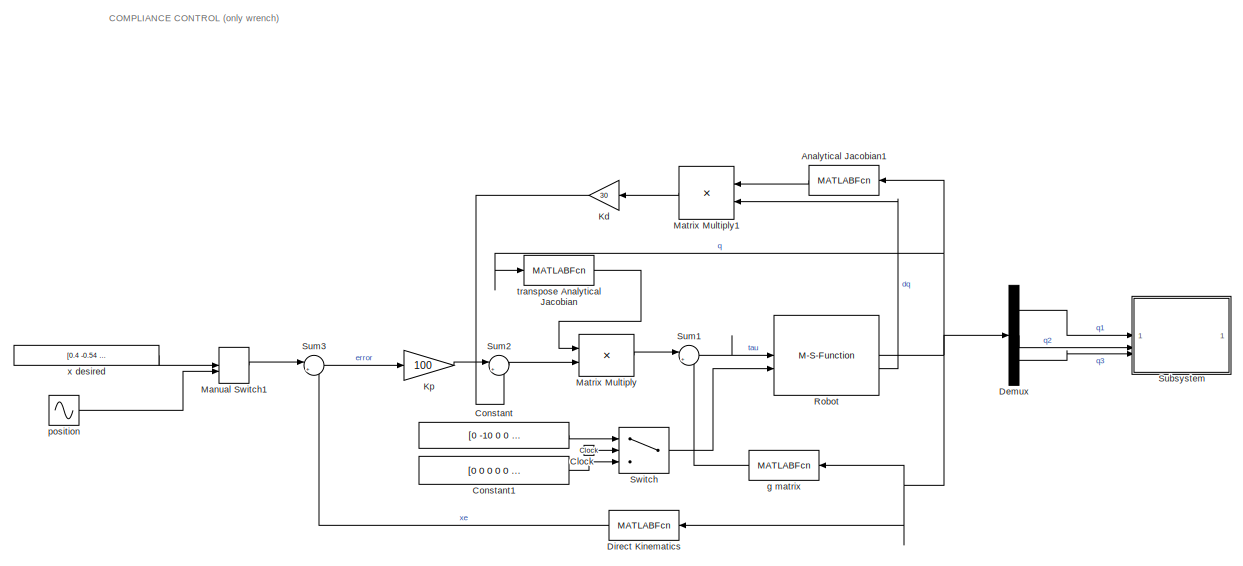
[diagram: root canvas - part 1/3, top left region]
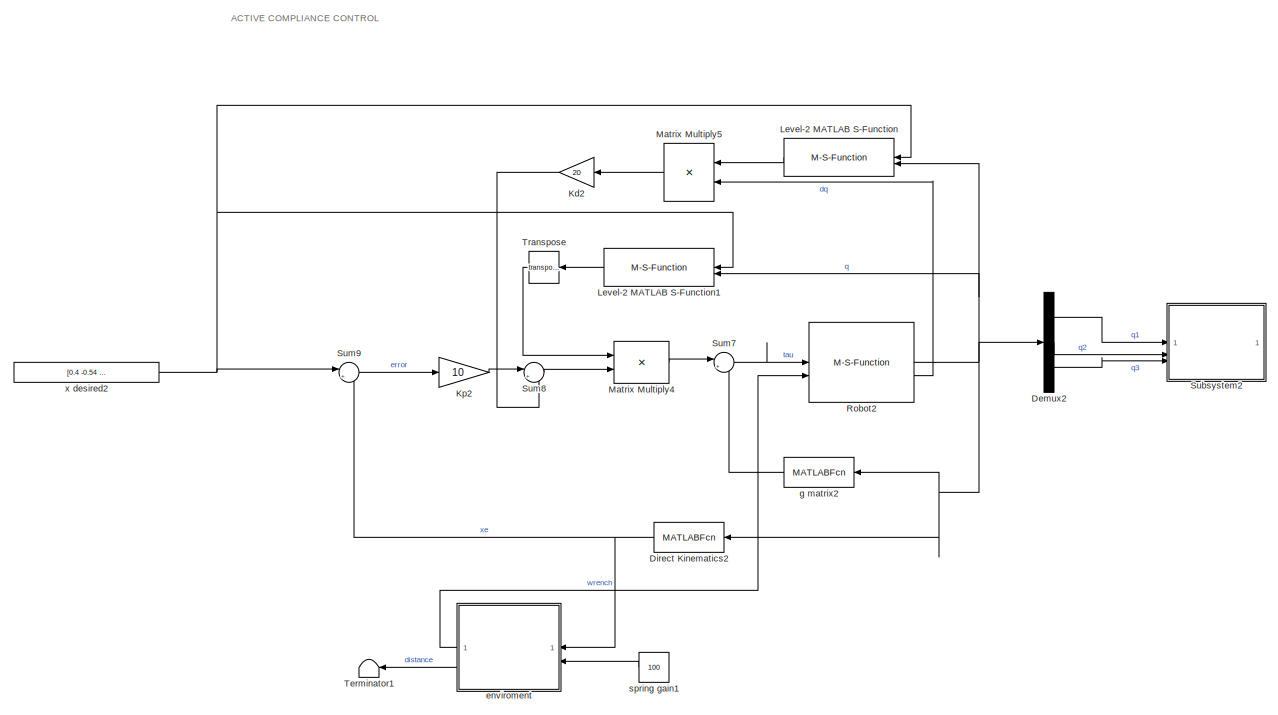
[diagram: root canvas - part 2/3, middle right region]
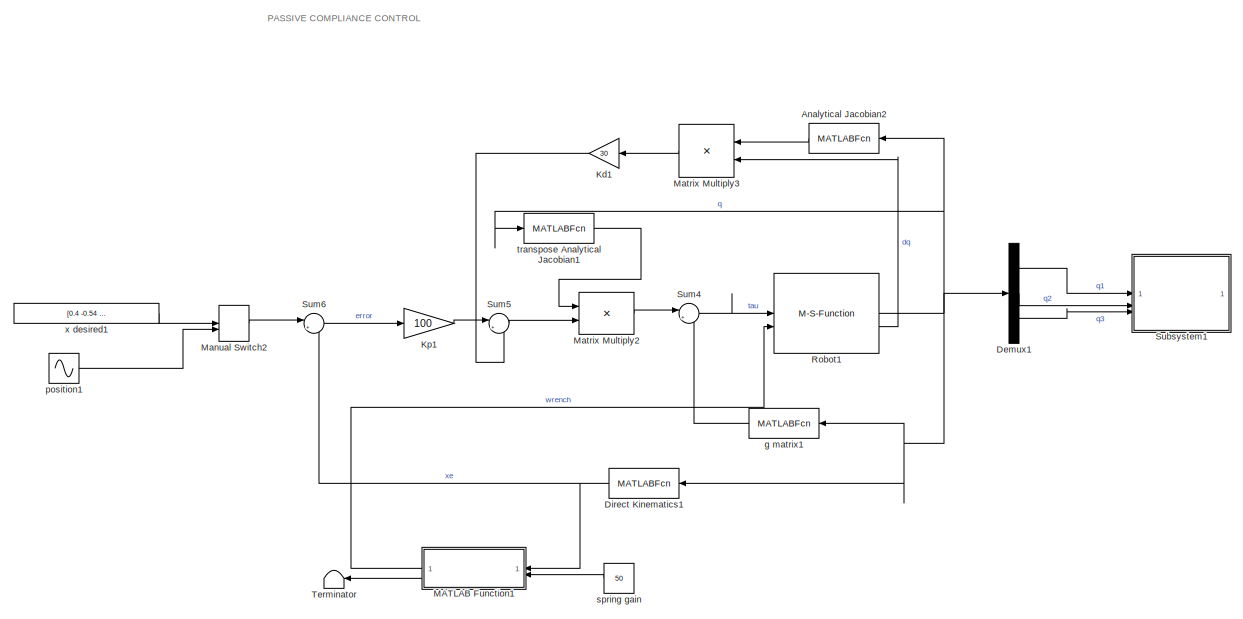
[diagram: root canvas - part 3/3, bottom left region]
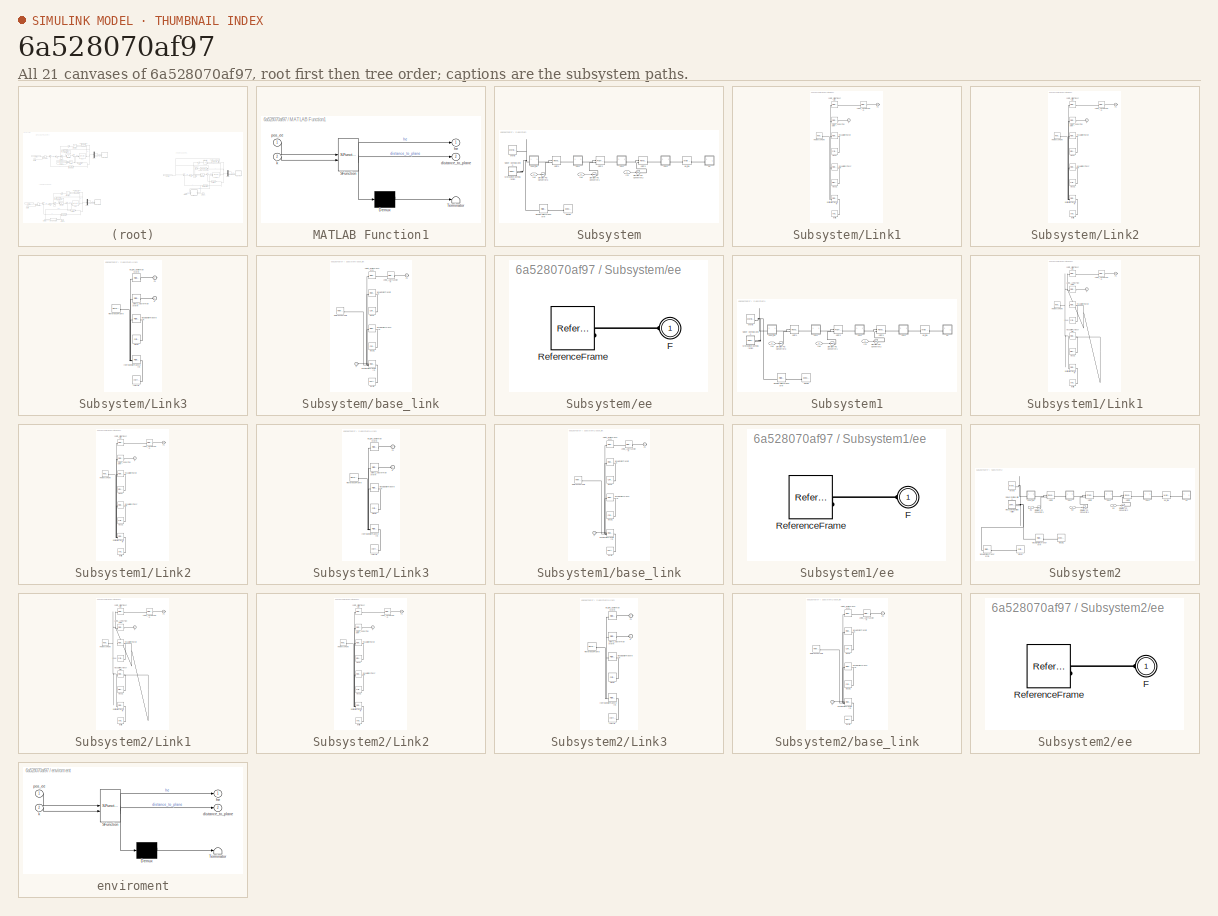
[diagram: thumbnail index - all 21 canvases of the model, root first then tree order]
MODEL slx_6a528070af97
KIND model
CONFIG AbsTol = auto
CONFIG EnableMultiTasking = off
CONFIG FixedStep = auto
CONFIG MaxStep = auto
CONFIG MinStep = auto
CONFIG RelTol = 1e-3
CONFIG SampleTimeConstraint = Unconstrained
CONFIG SolverName = VariableStepAuto
CONFIG StartTime = 0.0
CONFIG StopTime = 10.0
BLOCK [MATLABFcn] Analytical Jacobian1
  Commented = on
  MATLABFcn = robotStructure.func.AnalitycalJacobian(u(1), u(2), u(3))
  NameLocation = top
  Output1D = off
BLOCK [MATLABFcn] Analytical Jacobian2
  Commented = on
  MATLABFcn = robotStructure.func.AnalitycalJacobian(u(1), u(2), u(3))
  NameLocation = top
  Output1D = off
BLOCK [Clock] Clock
  Commented = on
BLOCK [Constant] Constant
  Commented = on
  Value = [0 -10 0 0 0 0]
BLOCK [Constant] Constant1
  Commented = on
  Value = [0 0 0 0 0 0]
BLOCK [Demux] Demux
  Commented = on
  Outputs = 3
BLOCK [Demux] Demux1
  Commented = on
  Outputs = 3
BLOCK [Demux] Demux2
  Outputs = 3
BLOCK [MATLABFcn] Direct Kinematics
  Commented = on
  MATLABFcn = robotStructure.func.EE(u(1), u(2), u(3))
  NameLocation = top
  Output1D = off
BLOCK [MATLABFcn] Direct Kinematics1
  Commented = on
  MATLABFcn = robotStructure.func.EE(u(1), u(2), u(3))
  NameLocation = top
  Output1D = off
BLOCK [MATLABFcn] Direct Kinematics2
  MATLABFcn = robotStructure.func.EE(u(1), u(2), u(3))
  NameLocation = top
  Output1D = off
BLOCK [Gain] Kd
  Commented = on
  Gain = 30
  NameLocation = top
BLOCK [Gain] Kd1
  Commented = on
  Gain = 30
  NameLocation = top
BLOCK [Gain] Kd2
  Gain = 20
  NameLocation = top
BLOCK [Gain] Kp
  Commented = on
  Gain = 100
BLOCK [Gain] Kp1
  Commented = on
  Gain = 100
BLOCK [Gain] Kp2
  Gain = 10
BLOCK [M-S-Function] Level-2 MATLAB S-Function
  FunctionName = activeCompliance
  NameLocation = top
  Parameters = robotStructure
BLOCK [M-S-Function] Level-2 MATLAB S-Function1
  FunctionName = activeCompliance
  NameLocation = top
  Parameters = robotStructure
BLOCK [SubSystem] MATLAB Function1
  Commented = on
  ErrorFcn = Stateflow.Translate.translate
  NameLocation = top
  PermitHierarchicalResolution = ExplicitOnly
  SFBlockType = MATLAB Function
  TreatAsAtomicUnit = on
BLOCK [Demux] MATLAB Function1/ Demux 
  Outputs = 1
BLOCK [S-Function] MATLAB Function1/ SFunction 
  EnableBusSupport = on
  FunctionName = sf_sfun
  PortCounts = [2 3]
  SFcnIsStateOwnerBlock = off
  SFunctionDeploymentMode = off
  Tag = Stateflow S-Function 1
BLOCK [Terminator] MATLAB Function1/ Terminator 
BLOCK [Outport] MATLAB Function1/distance_to_plane
  Port = 2
BLOCK [Outport] MATLAB Function1/he
BLOCK [Inport] MATLAB Function1/k
  Port = 2
BLOCK [Inport] MATLAB Function1/pos_ee
BLOCK [ManualSwitch] Manual Switch1
  Commented = on
BLOCK [ManualSwitch] Manual Switch2
  Commented = on
BLOCK [Product] Matrix Multiply
  Commented = on
  Multiplication = Matrix(*)
BLOCK [Product] Matrix Multiply1
  Commented = on
  Multiplication = Matrix(*)
  NameLocation = top
BLOCK [Product] Matrix Multiply2
  Commented = on
  Multiplication = Matrix(*)
BLOCK [Product] Matrix Multiply3
  Commented = on
  Multiplication = Matrix(*)
  NameLocation = top
BLOCK [Product] Matrix Multiply4
  Multiplication = Matrix(*)
BLOCK [Product] Matrix Multiply5
  Multiplication = Matrix(*)
  NameLocation = top
BLOCK [M-S-Function] Robot
  Commented = on
  FunctionName = robotDynamicsModel
  Parameters = robotStructure, [pi/4 -0.1 pi/2], [0 0 0]
BLOCK [M-S-Function] Robot1
  Commented = on
  FunctionName = robotDynamicsModel
  Parameters = robotStructure, [0, -0.2, pi/4], [0 0 0]
BLOCK [M-S-Function] Robot2
  FunctionName = robotDynamicsModel
  Parameters = robotStructure, [0, -0.11, pi/6], [0 0 0]
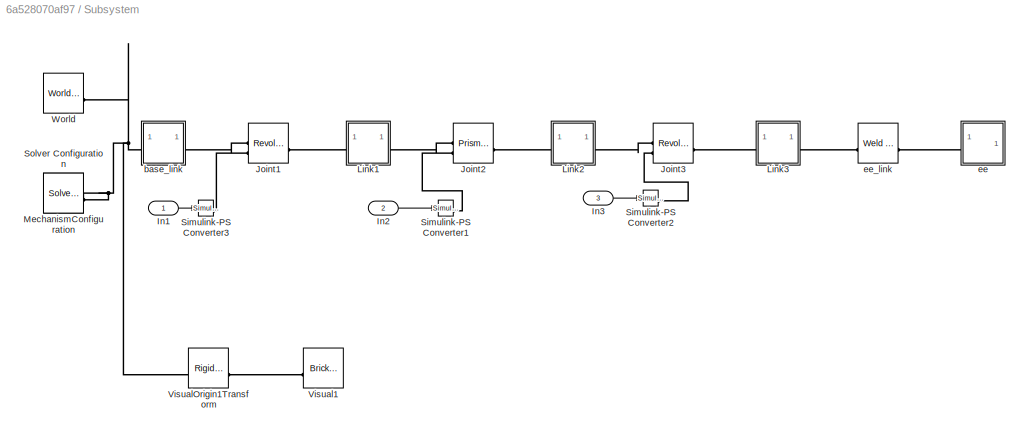
BLOCK [SubSystem] Subsystem
  Commented = on
BLOCK [Inport] Subsystem/In1
BLOCK [Inport] Subsystem/In2
  Port = 2
BLOCK [Inport] Subsystem/In3
  Port = 3
BLOCK [Reference] Subsystem/Joint1  REF=sm_lib/Joints/Revolute Joint
  SourceBlock = sm_lib/Joints/Revolute Joint
  SourceType = Revolute Joint
BLOCK [Reference] Subsystem/Joint2  REF=sm_lib/Joints/Prismatic
Joint
  SourceBlock = sm_lib/Joints/Prismatic\nJoint
  SourceType = Prismatic\nJoint
BLOCK [Reference] Subsystem/Joint3  REF=sm_lib/Joints/Revolute Joint
  SourceBlock = sm_lib/Joints/Revolute Joint
  SourceType = Revolute Joint
BLOCK [SubSystem] Subsystem/Link1
BLOCK [PMIOPort] Subsystem/Link1/F
  Side = Left
BLOCK [PMIOPort] Subsystem/Link1/F1
  Port = 2
  Side = Right
BLOCK [Reference] Subsystem/Link1/Inertia  REF=sm_lib/Body Elements/Inertia
  SourceBlock = sm_lib/Body Elements/Inertia
  SourceType = Inertia
BLOCK [Reference] Subsystem/Link1/InertiaOriginTransform  REF=sm_lib/Frames and
Transforms/Rigid
Transform
  SourceBlock = sm_lib/Frames and\nTransforms/Rigid\nTransform
  SourceType = Rigid\nTransform
BLOCK [Reference] Subsystem/Link1/Joint1_AxisInvTransform  REF=sm_lib/Frames and
Transforms/Rigid
Transform
  SourceBlock = sm_lib/Frames and\nTransforms/Rigid\nTransform
  SourceType = Rigid\nTransform
BLOCK [Reference] Subsystem/Link1/Joint2_AxisTransform  REF=sm_lib/Frames and
Transforms/Rigid
Transform
  SourceBlock = sm_lib/Frames and\nTransforms/Rigid\nTransform
  SourceType = Rigid\nTransform
BLOCK [Reference] Subsystem/Link1/Joint2_OriginTransform  REF=sm_lib/Frames and
Transforms/Rigid
Transform
  SourceBlock = sm_lib/Frames and\nTransforms/Rigid\nTransform
  SourceType = Rigid\nTransform
BLOCK [Reference] Subsystem/Link1/ReferenceFrame  REF=sm_lib/Frames and
Transforms/Reference
Frame
  SourceBlock = sm_lib/Frames and\nTransforms/Reference\nFrame
  SourceType = Reference\nFrame
BLOCK [Reference] Subsystem/Link1/Visual  REF=sm_lib/Body Elements/Cylindrical Solid
  SourceBlock = sm_lib/Body Elements/Cylindrical Solid
  SourceType = Cylindrical Solid
BLOCK [Reference] Subsystem/Link1/Visual1  REF=sm_lib/Body Elements/Brick Solid
  SourceBlock = sm_lib/Body Elements/Brick Solid
  SourceType = Brick Solid
BLOCK [Reference] Subsystem/Link1/VisualOrigin1Transform  REF=sm_lib/Frames and
Transforms/Rigid
Transform
  SourceBlock = sm_lib/Frames and\nTransforms/Rigid\nTransform
  SourceType = Rigid\nTransform
BLOCK [Reference] Subsystem/Link1/VisualOriginTransform  REF=sm_lib/Frames and
Transforms/Rigid
Transform
  SourceBlock = sm_lib/Frames and\nTransforms/Rigid\nTransform
  SourceType = Rigid\nTransform
BLOCK [SubSystem] Subsystem/Link2
BLOCK [PMIOPort] Subsystem/Link2/F
  Side = Left
BLOCK [PMIOPort] Subsystem/Link2/F1
  Port = 2
  Side = Right
BLOCK [Reference] Subsystem/Link2/Inertia  REF=sm_lib/Body Elements/Inertia
  SourceBlock = sm_lib/Body Elements/Inertia
  SourceType = Inertia
BLOCK [Reference] Subsystem/Link2/InertiaOriginTransform  REF=sm_lib/Frames and
Transforms/Rigid
Transform
  SourceBlock = sm_lib/Frames and\nTransforms/Rigid\nTransform
  SourceType = Rigid\nTransform
BLOCK [Reference] Subsystem/Link2/Joint2_AxisInvTransform  REF=sm_lib/Frames and
Transforms/Rigid
Transform
  SourceBlock = sm_lib/Frames and\nTransforms/Rigid\nTransform
  SourceType = Rigid\nTransform
BLOCK [Reference] Subsystem/Link2/Joint3_AxisTransform  REF=sm_lib/Frames and
Transforms/Rigid
Transform
  SourceBlock = sm_lib/Frames and\nTransforms/Rigid\nTransform
  SourceType = Rigid\nTransform
BLOCK [Reference] Subsystem/Link2/Joint3_OriginTransform  REF=sm_lib/Frames and
Transforms/Rigid
Transform
  SourceBlock = sm_lib/Frames and\nTransforms/Rigid\nTransform
  SourceType = Rigid\nTransform
BLOCK [Reference] Subsystem/Link2/ReferenceFrame  REF=sm_lib/Frames and
Transforms/Reference
Frame
  SourceBlock = sm_lib/Frames and\nTransforms/Reference\nFrame
  SourceType = Reference\nFrame
BLOCK [Reference] Subsystem/Link2/Visual  REF=sm_lib/Body Elements/Brick Solid
  SourceBlock = sm_lib/Body Elements/Brick Solid
  SourceType = Brick Solid
BLOCK [Reference] Subsystem/Link2/Visual1  REF=sm_lib/Body Elements/Cylindrical Solid
  SourceBlock = sm_lib/Body Elements/Cylindrical Solid
  SourceType = Cylindrical Solid
BLOCK [Reference] Subsystem/Link2/VisualOrigin1Transform  REF=sm_lib/Frames and
Transforms/Rigid
Transform
  SourceBlock = sm_lib/Frames and\nTransforms/Rigid\nTransform
  SourceType = Rigid\nTransform
BLOCK [Reference] Subsystem/Link2/VisualOriginTransform  REF=sm_lib/Frames and
Transforms/Rigid
Transform
  SourceBlock = sm_lib/Frames and\nTransforms/Rigid\nTransform
  SourceType = Rigid\nTransform
BLOCK [SubSystem] Subsystem/Link3
BLOCK [PMIOPort] Subsystem/Link3/F
  Side = Left
BLOCK [PMIOPort] Subsystem/Link3/F1
  Port = 2
  Side = Right
BLOCK [Reference] Subsystem/Link3/Inertia  REF=sm_lib/Body Elements/Inertia
  SourceBlock = sm_lib/Body Elements/Inertia
  SourceType = Inertia
BLOCK [Reference] Subsystem/Link3/InertiaOriginTransform  REF=sm_lib/Frames and
Transforms/Rigid
Transform
  SourceBlock = sm_lib/Frames and\nTransforms/Rigid\nTransform
  SourceType = Rigid\nTransform
BLOCK [Reference] Subsystem/Link3/Joint3_AxisInvTransform  REF=sm_lib/Frames and
Transforms/Rigid
Transform
  SourceBlock = sm_lib/Frames and\nTransforms/Rigid\nTransform
  SourceType = Rigid\nTransform
BLOCK [Reference] Subsystem/Link3/ReferenceFrame  REF=sm_lib/Frames and
Transforms/Reference
Frame
  SourceBlock = sm_lib/Frames and\nTransforms/Reference\nFrame
  SourceType = Reference\nFrame
BLOCK [Reference] Subsystem/Link3/Visual  REF=sm_lib/Body Elements/Cylindrical Solid
  SourceBlock = sm_lib/Body Elements/Cylindrical Solid
  SourceType = Cylindrical Solid
BLOCK [Reference] Subsystem/Link3/VisualOriginTransform  REF=sm_lib/Frames and
Transforms/Rigid
Transform
  SourceBlock = sm_lib/Frames and\nTransforms/Rigid\nTransform
  SourceType = Rigid\nTransform
BLOCK [Reference] Subsystem/Link3/ee_link_OriginTransform  REF=sm_lib/Frames and
Transforms/Rigid
Transform
  SourceBlock = sm_lib/Frames and\nTransforms/Rigid\nTransform
  SourceType = Rigid\nTransform
BLOCK [Reference] Subsystem/MechanismConfiguration  REF=sm_lib/Utilities/Mechanism
Configuration
  SourceBlock = sm_lib/Utilities/Mechanism\nConfiguration
  SourceType = Mechanism\nConfiguration
BLOCK [Reference] Subsystem/Simulink-PS Converter1  REF=nesl_utility/Simulink-PS
Converter
  SourceBlock = nesl_utility/Simulink-PS\nConverter
  SourceType = Simulink-PS\nConverter
BLOCK [Reference] Subsystem/Simulink-PS Converter2  REF=nesl_utility/Simulink-PS
Converter
  SourceBlock = nesl_utility/Simulink-PS\nConverter
  SourceType = Simulink-PS\nConverter
BLOCK [Reference] Subsystem/Simulink-PS Converter3  REF=nesl_utility/Simulink-PS
Converter
  SourceBlock = nesl_utility/Simulink-PS\nConverter
  SourceType = Simulink-PS\nConverter
BLOCK [Reference] Subsystem/Solver Configuration  REF=nesl_utility/Solver
Configuration
  SourceBlock = nesl_utility/Solver\nConfiguration
  SourceType = Solver\nConfiguration
BLOCK [Reference] Subsystem/Visual1  REF=sm_lib/Body Elements/Brick Solid
  NameLocation = top
  SourceBlock = sm_lib/Body Elements/Brick Solid
  SourceType = Brick Solid
BLOCK [Reference] Subsystem/VisualOrigin1Transform  REF=sm_lib/Frames and
Transforms/Rigid
Transform
  SourceBlock = sm_lib/Frames and\nTransforms/Rigid\nTransform
  SourceType = Rigid\nTransform
BLOCK [Reference] Subsystem/World  REF=sm_lib/Frames and
Transforms/World Frame
  SourceBlock = sm_lib/Frames and\nTransforms/World Frame
  SourceType = World Frame
BLOCK [SubSystem] Subsystem/base_link
BLOCK [PMIOPort] Subsystem/base_link/F
  Side = Left
BLOCK [PMIOPort] Subsystem/base_link/F1
  Port = 2
  Side = Right
BLOCK [Reference] Subsystem/base_link/Inertia  REF=sm_lib/Body Elements/Inertia
  SourceBlock = sm_lib/Body Elements/Inertia
  SourceType = Inertia
BLOCK [Reference] Subsystem/base_link/InertiaOriginTransform  REF=sm_lib/Frames and
Transforms/Rigid
Transform
  SourceBlock = sm_lib/Frames and\nTransforms/Rigid\nTransform
  SourceType = Rigid\nTransform
BLOCK [Reference] Subsystem/base_link/Joint1_AxisTransform  REF=sm_lib/Frames and
Transforms/Rigid
Transform
  SourceBlock = sm_lib/Frames and\nTransforms/Rigid\nTransform
  SourceType = Rigid\nTransform
BLOCK [Reference] Subsystem/base_link/Joint1_OriginTransform  REF=sm_lib/Frames and
Transforms/Rigid
Transform
  SourceBlock = sm_lib/Frames and\nTransforms/Rigid\nTransform
  SourceType = Rigid\nTransform
BLOCK [Reference] Subsystem/base_link/ReferenceFrame  REF=sm_lib/Frames and
Transforms/Reference
Frame
  SourceBlock = sm_lib/Frames and\nTransforms/Reference\nFrame
  SourceType = Reference\nFrame
BLOCK [Reference] Subsystem/base_link/Visual  REF=sm_lib/Body Elements/Cylindrical Solid
  SourceBlock = sm_lib/Body Elements/Cylindrical Solid
  SourceType = Cylindrical Solid
BLOCK [Reference] Subsystem/base_link/Visual1  REF=sm_lib/Body Elements/Cylindrical Solid
  SourceBlock = sm_lib/Body Elements/Cylindrical Solid
  SourceType = Cylindrical Solid
BLOCK [Reference] Subsystem/base_link/VisualOrigin1Transform  REF=sm_lib/Frames and
Transforms/Rigid
Transform
  SourceBlock = sm_lib/Frames and\nTransforms/Rigid\nTransform
  SourceType = Rigid\nTransform
BLOCK [Reference] Subsystem/base_link/VisualOriginTransform  REF=sm_lib/Frames and
Transforms/Rigid
Transform
  SourceBlock = sm_lib/Frames and\nTransforms/Rigid\nTransform
  SourceType = Rigid\nTransform
BLOCK [SubSystem] Subsystem/ee
BLOCK [PMIOPort] Subsystem/ee/F
  Side = Left
BLOCK [Reference] Subsystem/ee/ReferenceFrame  REF=sm_lib/Frames and
Transforms/Reference
Frame
  SourceBlock = sm_lib/Frames and\nTransforms/Reference\nFrame
  SourceType = Reference\nFrame
BLOCK [Reference] Subsystem/ee_link  REF=sm_lib/Joints/Weld Joint
  SourceBlock = sm_lib/Joints/Weld Joint
  SourceType = Weld Joint
BLOCK [SubSystem] Subsystem1
  Commented = on
BLOCK [Inport] Subsystem1/In1
BLOCK [Inport] Subsystem1/In2
  Port = 2
BLOCK [Inport] Subsystem1/In3
  Port = 3
BLOCK [Reference] Subsystem1/Joint1  REF=sm_lib/Joints/Revolute Joint
  SourceBlock = sm_lib/Joints/Revolute Joint
  SourceType = Revolute Joint
BLOCK [Reference] Subsystem1/Joint2  REF=sm_lib/Joints/Prismatic
Joint
  SourceBlock = sm_lib/Joints/Prismatic\nJoint
  SourceType = Prismatic\nJoint
BLOCK [Reference] Subsystem1/Joint3  REF=sm_lib/Joints/Revolute Joint
  SourceBlock = sm_lib/Joints/Revolute Joint
  SourceType = Revolute Joint
BLOCK [SubSystem] Subsystem1/Link1
BLOCK [PMIOPort] Subsystem1/Link1/F
  Side = Left
BLOCK [PMIOPort] Subsystem1/Link1/F1
  Port = 2
  Side = Right
BLOCK [Reference] Subsystem1/Link1/Inertia  REF=sm_lib/Body Elements/Inertia
  SourceBlock = sm_lib/Body Elements/Inertia
  SourceType = Inertia
BLOCK [Reference] Subsystem1/Link1/InertiaOriginTransform  REF=sm_lib/Frames and
Transforms/Rigid
Transform
  SourceBlock = sm_lib/Frames and\nTransforms/Rigid\nTransform
  SourceType = Rigid\nTransform
BLOCK [Reference] Subsystem1/Link1/Joint1_AxisInvTransform  REF=sm_lib/Frames and
Transforms/Rigid
Transform
  SourceBlock = sm_lib/Frames and\nTransforms/Rigid\nTransform
  SourceType = Rigid\nTransform
BLOCK [Reference] Subsystem1/Link1/Joint2_AxisTransform  REF=sm_lib/Frames and
Transforms/Rigid
Transform
  SourceBlock = sm_lib/Frames and\nTransforms/Rigid\nTransform
  SourceType = Rigid\nTransform
BLOCK [Reference] Subsystem1/Link1/Joint2_OriginTransform  REF=sm_lib/Frames and
Transforms/Rigid
Transform
  SourceBlock = sm_lib/Frames and\nTransforms/Rigid\nTransform
  SourceType = Rigid\nTransform
BLOCK [Reference] Subsystem1/Link1/ReferenceFrame  REF=sm_lib/Frames and
Transforms/Reference
Frame
  SourceBlock = sm_lib/Frames and\nTransforms/Reference\nFrame
  SourceType = Reference\nFrame
BLOCK [Reference] Subsystem1/Link1/Visual  REF=sm_lib/Body Elements/Cylindrical Solid
  SourceBlock = sm_lib/Body Elements/Cylindrical Solid
  SourceType = Cylindrical Solid
BLOCK [Reference] Subsystem1/Link1/Visual1  REF=sm_lib/Body Elements/Brick Solid
  SourceBlock = sm_lib/Body Elements/Brick Solid
  SourceType = Brick Solid
BLOCK [Reference] Subsystem1/Link1/VisualOrigin1Transform  REF=sm_lib/Frames and
Transforms/Rigid
Transform
  SourceBlock = sm_lib/Frames and\nTransforms/Rigid\nTransform
  SourceType = Rigid\nTransform
BLOCK [Reference] Subsystem1/Link1/VisualOriginTransform  REF=sm_lib/Frames and
Transforms/Rigid
Transform
  SourceBlock = sm_lib/Frames and\nTransforms/Rigid\nTransform
  SourceType = Rigid\nTransform
BLOCK [SubSystem] Subsystem1/Link2
BLOCK [PMIOPort] Subsystem1/Link2/F
  Side = Left
BLOCK [PMIOPort] Subsystem1/Link2/F1
  Port = 2
  Side = Right
BLOCK [Reference] Subsystem1/Link2/Inertia  REF=sm_lib/Body Elements/Inertia
  SourceBlock = sm_lib/Body Elements/Inertia
  SourceType = Inertia
BLOCK [Reference] Subsystem1/Link2/InertiaOriginTransform  REF=sm_lib/Frames and
Transforms/Rigid
Transform
  SourceBlock = sm_lib/Frames and\nTransforms/Rigid\nTransform
  SourceType = Rigid\nTransform
BLOCK [Reference] Subsystem1/Link2/Joint2_AxisInvTransform  REF=sm_lib/Frames and
Transforms/Rigid
Transform
  SourceBlock = sm_lib/Frames and\nTransforms/Rigid\nTransform
  SourceType = Rigid\nTransform
BLOCK [Reference] Subsystem1/Link2/Joint3_AxisTransform  REF=sm_lib/Frames and
Transforms/Rigid
Transform
  SourceBlock = sm_lib/Frames and\nTransforms/Rigid\nTransform
  SourceType = Rigid\nTransform
BLOCK [Reference] Subsystem1/Link2/Joint3_OriginTransform  REF=sm_lib/Frames and
Transforms/Rigid
Transform
  SourceBlock = sm_lib/Frames and\nTransforms/Rigid\nTransform
  SourceType = Rigid\nTransform
BLOCK [Reference] Subsystem1/Link2/ReferenceFrame  REF=sm_lib/Frames and
Transforms/Reference
Frame
  SourceBlock = sm_lib/Frames and\nTransforms/Reference\nFrame
  SourceType = Reference\nFrame
BLOCK [Reference] Subsystem1/Link2/Visual  REF=sm_lib/Body Elements/Brick Solid
  SourceBlock = sm_lib/Body Elements/Brick Solid
  SourceType = Brick Solid
BLOCK [Reference] Subsystem1/Link2/Visual1  REF=sm_lib/Body Elements/Cylindrical Solid
  SourceBlock = sm_lib/Body Elements/Cylindrical Solid
  SourceType = Cylindrical Solid
BLOCK [Reference] Subsystem1/Link2/VisualOrigin1Transform  REF=sm_lib/Frames and
Transforms/Rigid
Transform
  SourceBlock = sm_lib/Frames and\nTransforms/Rigid\nTransform
  SourceType = Rigid\nTransform
BLOCK [Reference] Subsystem1/Link2/VisualOriginTransform  REF=sm_lib/Frames and
Transforms/Rigid
Transform
  SourceBlock = sm_lib/Frames and\nTransforms/Rigid\nTransform
  SourceType = Rigid\nTransform
BLOCK [SubSystem] Subsystem1/Link3
BLOCK [PMIOPort] Subsystem1/Link3/F
  Side = Left
BLOCK [PMIOPort] Subsystem1/Link3/F1
  Port = 2
  Side = Right
BLOCK [Reference] Subsystem1/Link3/Inertia  REF=sm_lib/Body Elements/Inertia
  SourceBlock = sm_lib/Body Elements/Inertia
  SourceType = Inertia
BLOCK [Reference] Subsystem1/Link3/InertiaOriginTransform  REF=sm_lib/Frames and
Transforms/Rigid
Transform
  SourceBlock = sm_lib/Frames and\nTransforms/Rigid\nTransform
  SourceType = Rigid\nTransform
BLOCK [Reference] Subsystem1/Link3/Joint3_AxisInvTransform  REF=sm_lib/Frames and
Transforms/Rigid
Transform
  SourceBlock = sm_lib/Frames and\nTransforms/Rigid\nTransform
  SourceType = Rigid\nTransform
BLOCK [Reference] Subsystem1/Link3/ReferenceFrame  REF=sm_lib/Frames and
Transforms/Reference
Frame
  SourceBlock = sm_lib/Frames and\nTransforms/Reference\nFrame
  SourceType = Reference\nFrame
BLOCK [Reference] Subsystem1/Link3/Visual  REF=sm_lib/Body Elements/Cylindrical Solid
  SourceBlock = sm_lib/Body Elements/Cylindrical Solid
  SourceType = Cylindrical Solid
BLOCK [Reference] Subsystem1/Link3/VisualOriginTransform  REF=sm_lib/Frames and
Transforms/Rigid
Transform
  SourceBlock = sm_lib/Frames and\nTransforms/Rigid\nTransform
  SourceType = Rigid\nTransform
BLOCK [Reference] Subsystem1/Link3/ee_link_OriginTransform  REF=sm_lib/Frames and
Transforms/Rigid
Transform
  SourceBlock = sm_lib/Frames and\nTransforms/Rigid\nTransform
  SourceType = Rigid\nTransform
BLOCK [Reference] Subsystem1/MechanismConfiguration  REF=sm_lib/Utilities/Mechanism
Configuration
  SourceBlock = sm_lib/Utilities/Mechanism\nConfiguration
  SourceType = Mechanism\nConfiguration
BLOCK [Reference] Subsystem1/Simulink-PS Converter1  REF=nesl_utility/Simulink-PS
Converter
  SourceBlock = nesl_utility/Simulink-PS\nConverter
  SourceType = Simulink-PS\nConverter
BLOCK [Reference] Subsystem1/Simulink-PS Converter2  REF=nesl_utility/Simulink-PS
Converter
  SourceBlock = nesl_utility/Simulink-PS\nConverter
  SourceType = Simulink-PS\nConverter
BLOCK [Reference] Subsystem1/Simulink-PS Converter3  REF=nesl_utility/Simulink-PS
Converter
  SourceBlock = nesl_utility/Simulink-PS\nConverter
  SourceType = Simulink-PS\nConverter
BLOCK [Reference] Subsystem1/Solver Configuration  REF=nesl_utility/Solver
Configuration
  SourceBlock = nesl_utility/Solver\nConfiguration
  SourceType = Solver\nConfiguration
BLOCK [Reference] Subsystem1/Visual1  REF=sm_lib/Body Elements/Brick Solid
  NameLocation = top
  SourceBlock = sm_lib/Body Elements/Brick Solid
  SourceType = Brick Solid
BLOCK [Reference] Subsystem1/VisualOrigin1Transform  REF=sm_lib/Frames and
Transforms/Rigid
Transform
  SourceBlock = sm_lib/Frames and\nTransforms/Rigid\nTransform
  SourceType = Rigid\nTransform
BLOCK [Reference] Subsystem1/World  REF=sm_lib/Frames and
Transforms/World Frame
  SourceBlock = sm_lib/Frames and\nTransforms/World Frame
  SourceType = World Frame
BLOCK [SubSystem] Subsystem1/base_link
BLOCK [PMIOPort] Subsystem1/base_link/F
  Side = Left
BLOCK [PMIOPort] Subsystem1/base_link/F1
  Port = 2
  Side = Right
BLOCK [Reference] Subsystem1/base_link/Inertia  REF=sm_lib/Body Elements/Inertia
  SourceBlock = sm_lib/Body Elements/Inertia
  SourceType = Inertia
BLOCK [Reference] Subsystem1/base_link/InertiaOriginTransform  REF=sm_lib/Frames and
Transforms/Rigid
Transform
  SourceBlock = sm_lib/Frames and\nTransforms/Rigid\nTransform
  SourceType = Rigid\nTransform
BLOCK [Reference] Subsystem1/base_link/Joint1_AxisTransform  REF=sm_lib/Frames and
Transforms/Rigid
Transform
  SourceBlock = sm_lib/Frames and\nTransforms/Rigid\nTransform
  SourceType = Rigid\nTransform
BLOCK [Reference] Subsystem1/base_link/Joint1_OriginTransform  REF=sm_lib/Frames and
Transforms/Rigid
Transform
  SourceBlock = sm_lib/Frames and\nTransforms/Rigid\nTransform
  SourceType = Rigid\nTransform
BLOCK [Reference] Subsystem1/base_link/ReferenceFrame  REF=sm_lib/Frames and
Transforms/Reference
Frame
  SourceBlock = sm_lib/Frames and\nTransforms/Reference\nFrame
  SourceType = Reference\nFrame
BLOCK [Reference] Subsystem1/base_link/Visual  REF=sm_lib/Body Elements/Cylindrical Solid
  SourceBlock = sm_lib/Body Elements/Cylindrical Solid
  SourceType = Cylindrical Solid
BLOCK [Reference] Subsystem1/base_link/Visual1  REF=sm_lib/Body Elements/Cylindrical Solid
  SourceBlock = sm_lib/Body Elements/Cylindrical Solid
  SourceType = Cylindrical Solid
BLOCK [Reference] Subsystem1/base_link/VisualOrigin1Transform  REF=sm_lib/Frames and
Transforms/Rigid
Transform
  SourceBlock = sm_lib/Frames and\nTransforms/Rigid\nTransform
  SourceType = Rigid\nTransform
BLOCK [Reference] Subsystem1/base_link/VisualOriginTransform  REF=sm_lib/Frames and
Transforms/Rigid
Transform
  SourceBlock = sm_lib/Frames and\nTransforms/Rigid\nTransform
  SourceType = Rigid\nTransform
BLOCK [SubSystem] Subsystem1/ee
BLOCK [PMIOPort] Subsystem1/ee/F
  Side = Left
BLOCK [Reference] Subsystem1/ee/ReferenceFrame  REF=sm_lib/Frames and
Transforms/Reference
Frame
  SourceBlock = sm_lib/Frames and\nTransforms/Reference\nFrame
  SourceType = Reference\nFrame
BLOCK [Reference] Subsystem1/ee_link  REF=sm_lib/Joints/Weld Joint
  SourceBlock = sm_lib/Joints/Weld Joint
  SourceType = Weld Joint
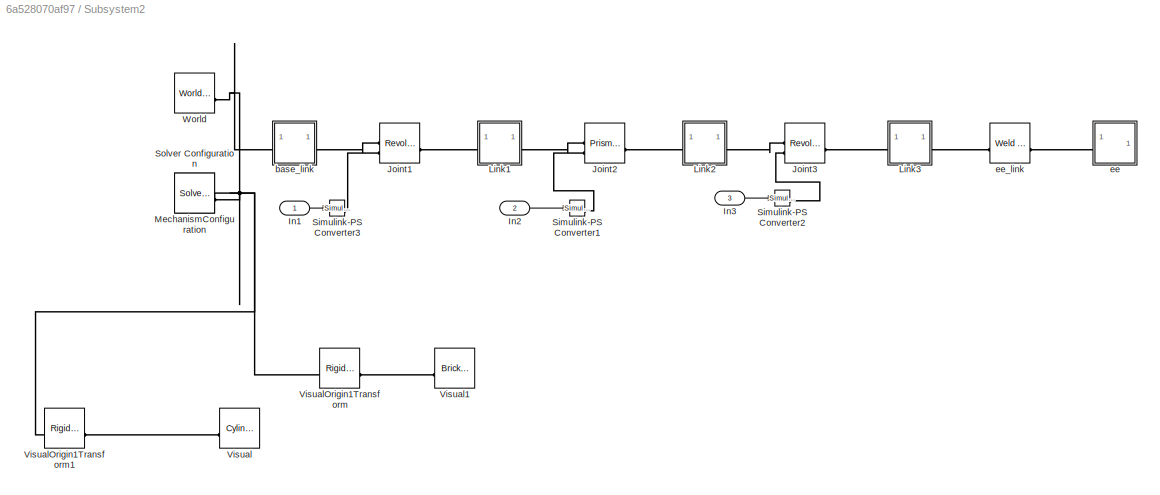
BLOCK [SubSystem] Subsystem2
BLOCK [Inport] Subsystem2/In1
BLOCK [Inport] Subsystem2/In2
  Port = 2
BLOCK [Inport] Subsystem2/In3
  Port = 3
BLOCK [Reference] Subsystem2/Joint1  REF=sm_lib/Joints/Revolute Joint
  SourceBlock = sm_lib/Joints/Revolute Joint
  SourceType = Revolute Joint
BLOCK [Reference] Subsystem2/Joint2  REF=sm_lib/Joints/Prismatic
Joint
  SourceBlock = sm_lib/Joints/Prismatic\nJoint
  SourceType = Prismatic\nJoint
BLOCK [Reference] Subsystem2/Joint3  REF=sm_lib/Joints/Revolute Joint
  SourceBlock = sm_lib/Joints/Revolute Joint
  SourceType = Revolute Joint
BLOCK [SubSystem] Subsystem2/Link1
BLOCK [PMIOPort] Subsystem2/Link1/F
  Side = Left
BLOCK [PMIOPort] Subsystem2/Link1/F1
  Port = 2
  Side = Right
BLOCK [Reference] Subsystem2/Link1/Inertia  REF=sm_lib/Body Elements/Inertia
  SourceBlock = sm_lib/Body Elements/Inertia
  SourceType = Inertia
BLOCK [Reference] Subsystem2/Link1/InertiaOriginTransform  REF=sm_lib/Frames and
Transforms/Rigid
Transform
  SourceBlock = sm_lib/Frames and\nTransforms/Rigid\nTransform
  SourceType = Rigid\nTransform
BLOCK [Reference] Subsystem2/Link1/Joint1_AxisInvTransform  REF=sm_lib/Frames and
Transforms/Rigid
Transform
  SourceBlock = sm_lib/Frames and\nTransforms/Rigid\nTransform
  SourceType = Rigid\nTransform
BLOCK [Reference] Subsystem2/Link1/Joint2_AxisTransform  REF=sm_lib/Frames and
Transforms/Rigid
Transform
  SourceBlock = sm_lib/Frames and\nTransforms/Rigid\nTransform
  SourceType = Rigid\nTransform
BLOCK [Reference] Subsystem2/Link1/Joint2_OriginTransform  REF=sm_lib/Frames and
Transforms/Rigid
Transform
  SourceBlock = sm_lib/Frames and\nTransforms/Rigid\nTransform
  SourceType = Rigid\nTransform
BLOCK [Reference] Subsystem2/Link1/ReferenceFrame  REF=sm_lib/Frames and
Transforms/Reference
Frame
  SourceBlock = sm_lib/Frames and\nTransforms/Reference\nFrame
  SourceType = Reference\nFrame
BLOCK [Reference] Subsystem2/Link1/Visual  REF=sm_lib/Body Elements/Cylindrical Solid
  SourceBlock = sm_lib/Body Elements/Cylindrical Solid
  SourceType = Cylindrical Solid
BLOCK [Reference] Subsystem2/Link1/Visual1  REF=sm_lib/Body Elements/Brick Solid
  SourceBlock = sm_lib/Body Elements/Brick Solid
  SourceType = Brick Solid
BLOCK [Reference] Subsystem2/Link1/VisualOrigin1Transform  REF=sm_lib/Frames and
Transforms/Rigid
Transform
  SourceBlock = sm_lib/Frames and\nTransforms/Rigid\nTransform
  SourceType = Rigid\nTransform
BLOCK [Reference] Subsystem2/Link1/VisualOriginTransform  REF=sm_lib/Frames and
Transforms/Rigid
Transform
  SourceBlock = sm_lib/Frames and\nTransforms/Rigid\nTransform
  SourceType = Rigid\nTransform
BLOCK [SubSystem] Subsystem2/Link2
BLOCK [PMIOPort] Subsystem2/Link2/F
  Side = Left
BLOCK [PMIOPort] Subsystem2/Link2/F1
  Port = 2
  Side = Right
BLOCK [Reference] Subsystem2/Link2/Inertia  REF=sm_lib/Body Elements/Inertia
  SourceBlock = sm_lib/Body Elements/Inertia
  SourceType = Inertia
BLOCK [Reference] Subsystem2/Link2/InertiaOriginTransform  REF=sm_lib/Frames and
Transforms/Rigid
Transform
  SourceBlock = sm_lib/Frames and\nTransforms/Rigid\nTransform
  SourceType = Rigid\nTransform
BLOCK [Reference] Subsystem2/Link2/Joint2_AxisInvTransform  REF=sm_lib/Frames and
Transforms/Rigid
Transform
  SourceBlock = sm_lib/Frames and\nTransforms/Rigid\nTransform
  SourceType = Rigid\nTransform
BLOCK [Reference] Subsystem2/Link2/Joint3_AxisTransform  REF=sm_lib/Frames and
Transforms/Rigid
Transform
  SourceBlock = sm_lib/Frames and\nTransforms/Rigid\nTransform
  SourceType = Rigid\nTransform
BLOCK [Reference] Subsystem2/Link2/Joint3_OriginTransform  REF=sm_lib/Frames and
Transforms/Rigid
Transform
  SourceBlock = sm_lib/Frames and\nTransforms/Rigid\nTransform
  SourceType = Rigid\nTransform
BLOCK [Reference] Subsystem2/Link2/ReferenceFrame  REF=sm_lib/Frames and
Transforms/Reference
Frame
  SourceBlock = sm_lib/Frames and\nTransforms/Reference\nFrame
  SourceType = Reference\nFrame
BLOCK [Reference] Subsystem2/Link2/Visual  REF=sm_lib/Body Elements/Brick Solid
  SourceBlock = sm_lib/Body Elements/Brick Solid
  SourceType = Brick Solid
BLOCK [Reference] Subsystem2/Link2/Visual1  REF=sm_lib/Body Elements/Cylindrical Solid
  SourceBlock = sm_lib/Body Elements/Cylindrical Solid
  SourceType = Cylindrical Solid
BLOCK [Reference] Subsystem2/Link2/VisualOrigin1Transform  REF=sm_lib/Frames and
Transforms/Rigid
Transform
  SourceBlock = sm_lib/Frames and\nTransforms/Rigid\nTransform
  SourceType = Rigid\nTransform
BLOCK [Reference] Subsystem2/Link2/VisualOriginTransform  REF=sm_lib/Frames and
Transforms/Rigid
Transform
  SourceBlock = sm_lib/Frames and\nTransforms/Rigid\nTransform
  SourceType = Rigid\nTransform
BLOCK [SubSystem] Subsystem2/Link3
BLOCK [PMIOPort] Subsystem2/Link3/F
  Side = Left
BLOCK [PMIOPort] Subsystem2/Link3/F1
  Port = 2
  Side = Right
BLOCK [Reference] Subsystem2/Link3/Inertia  REF=sm_lib/Body Elements/Inertia
  SourceBlock = sm_lib/Body Elements/Inertia
  SourceType = Inertia
BLOCK [Reference] Subsystem2/Link3/InertiaOriginTransform  REF=sm_lib/Frames and
Transforms/Rigid
Transform
  SourceBlock = sm_lib/Frames and\nTransforms/Rigid\nTransform
  SourceType = Rigid\nTransform
BLOCK [Reference] Subsystem2/Link3/Joint3_AxisInvTransform  REF=sm_lib/Frames and
Transforms/Rigid
Transform
  SourceBlock = sm_lib/Frames and\nTransforms/Rigid\nTransform
  SourceType = Rigid\nTransform
BLOCK [Reference] Subsystem2/Link3/ReferenceFrame  REF=sm_lib/Frames and
Transforms/Reference
Frame
  SourceBlock = sm_lib/Frames and\nTransforms/Reference\nFrame
  SourceType = Reference\nFrame
BLOCK [Reference] Subsystem2/Link3/Visual  REF=sm_lib/Body Elements/Cylindrical Solid
  SourceBlock = sm_lib/Body Elements/Cylindrical Solid
  SourceType = Cylindrical Solid
BLOCK [Reference] Subsystem2/Link3/VisualOriginTransform  REF=sm_lib/Frames and
Transforms/Rigid
Transform
  SourceBlock = sm_lib/Frames and\nTransforms/Rigid\nTransform
  SourceType = Rigid\nTransform
BLOCK [Reference] Subsystem2/Link3/ee_link_OriginTransform  REF=sm_lib/Frames and
Transforms/Rigid
Transform
  SourceBlock = sm_lib/Frames and\nTransforms/Rigid\nTransform
  SourceType = Rigid\nTransform
BLOCK [Reference] Subsystem2/MechanismConfiguration  REF=sm_lib/Utilities/Mechanism
Configuration
  SourceBlock = sm_lib/Utilities/Mechanism\nConfiguration
  SourceType = Mechanism\nConfiguration
BLOCK [Reference] Subsystem2/Simulink-PS Converter1  REF=nesl_utility/Simulink-PS
Converter
  SourceBlock = nesl_utility/Simulink-PS\nConverter
  SourceType = Simulink-PS\nConverter
BLOCK [Reference] Subsystem2/Simulink-PS Converter2  REF=nesl_utility/Simulink-PS
Converter
  SourceBlock = nesl_utility/Simulink-PS\nConverter
  SourceType = Simulink-PS\nConverter
BLOCK [Reference] Subsystem2/Simulink-PS Converter3  REF=nesl_utility/Simulink-PS
Converter
  SourceBlock = nesl_utility/Simulink-PS\nConverter
  SourceType = Simulink-PS\nConverter
BLOCK [Reference] Subsystem2/Solver Configuration  REF=nesl_utility/Solver
Configuration
  SourceBlock = nesl_utility/Solver\nConfiguration
  SourceType = Solver\nConfiguration
BLOCK [Reference] Subsystem2/Visual  REF=sm_lib/Body Elements/Cylindrical Solid
  NameLocation = top
  SourceBlock = sm_lib/Body Elements/Cylindrical Solid
  SourceType = Cylindrical Solid
BLOCK [Reference] Subsystem2/Visual1  REF=sm_lib/Body Elements/Brick Solid
  NameLocation = top
  SourceBlock = sm_lib/Body Elements/Brick Solid
  SourceType = Brick Solid
BLOCK [Reference] Subsystem2/VisualOrigin1Transform  REF=sm_lib/Frames and
Transforms/Rigid
Transform
  SourceBlock = sm_lib/Frames and\nTransforms/Rigid\nTransform
  SourceType = Rigid\nTransform
BLOCK [Reference] Subsystem2/VisualOrigin1Transform1  REF=sm_lib/Frames and
Transforms/Rigid
Transform
  SourceBlock = sm_lib/Frames and\nTransforms/Rigid\nTransform
  SourceType = Rigid\nTransform
BLOCK [Reference] Subsystem2/World  REF=sm_lib/Frames and
Transforms/World Frame
  SourceBlock = sm_lib/Frames and\nTransforms/World Frame
  SourceType = World Frame
BLOCK [SubSystem] Subsystem2/base_link
BLOCK [PMIOPort] Subsystem2/base_link/F
  Side = Left
BLOCK [PMIOPort] Subsystem2/base_link/F1
  Port = 2
  Side = Right
BLOCK [Reference] Subsystem2/base_link/Inertia  REF=sm_lib/Body Elements/Inertia
  SourceBlock = sm_lib/Body Elements/Inertia
  SourceType = Inertia
BLOCK [Reference] Subsystem2/base_link/InertiaOriginTransform  REF=sm_lib/Frames and
Transforms/Rigid
Transform
  SourceBlock = sm_lib/Frames and\nTransforms/Rigid\nTransform
  SourceType = Rigid\nTransform
BLOCK [Reference] Subsystem2/base_link/Joint1_AxisTransform  REF=sm_lib/Frames and
Transforms/Rigid
Transform
  SourceBlock = sm_lib/Frames and\nTransforms/Rigid\nTransform
  SourceType = Rigid\nTransform
BLOCK [Reference] Subsystem2/base_link/Joint1_OriginTransform  REF=sm_lib/Frames and
Transforms/Rigid
Transform
  SourceBlock = sm_lib/Frames and\nTransforms/Rigid\nTransform
  SourceType = Rigid\nTransform
BLOCK [Reference] Subsystem2/base_link/ReferenceFrame  REF=sm_lib/Frames and
Transforms/Reference
Frame
  SourceBlock = sm_lib/Frames and\nTransforms/Reference\nFrame
  SourceType = Reference\nFrame
BLOCK [Reference] Subsystem2/base_link/Visual  REF=sm_lib/Body Elements/Cylindrical Solid
  SourceBlock = sm_lib/Body Elements/Cylindrical Solid
  SourceType = Cylindrical Solid
BLOCK [Reference] Subsystem2/base_link/Visual1  REF=sm_lib/Body Elements/Cylindrical Solid
  SourceBlock = sm_lib/Body Elements/Cylindrical Solid
  SourceType = Cylindrical Solid
BLOCK [Reference] Subsystem2/base_link/VisualOrigin1Transform  REF=sm_lib/Frames and
Transforms/Rigid
Transform
  SourceBlock = sm_lib/Frames and\nTransforms/Rigid\nTransform
  SourceType = Rigid\nTransform
BLOCK [Reference] Subsystem2/base_link/VisualOriginTransform  REF=sm_lib/Frames and
Transforms/Rigid
Transform
  SourceBlock = sm_lib/Frames and\nTransforms/Rigid\nTransform
  SourceType = Rigid\nTransform
BLOCK [SubSystem] Subsystem2/ee
BLOCK [PMIOPort] Subsystem2/ee/F
  Side = Left
BLOCK [Reference] Subsystem2/ee/ReferenceFrame  REF=sm_lib/Frames and
Transforms/Reference
Frame
  SourceBlock = sm_lib/Frames and\nTransforms/Reference\nFrame
  SourceType = Reference\nFrame
BLOCK [Reference] Subsystem2/ee_link  REF=sm_lib/Joints/Weld Joint
  SourceBlock = sm_lib/Joints/Weld Joint
  SourceType = Weld Joint
BLOCK [Sum] Sum1
  Commented = on
  Inputs = |++
BLOCK [Sum] Sum2
  Commented = on
  Inputs = |+-
BLOCK [Sum] Sum3
  Commented = on
  Inputs = |+-
BLOCK [Sum] Sum4
  Commented = on
  Inputs = |++
BLOCK [Sum] Sum5
  Commented = on
  Inputs = |+-
BLOCK [Sum] Sum6
  Commented = on
  Inputs = |+-
BLOCK [Sum] Sum7
  Inputs = |++
BLOCK [Sum] Sum8
  Inputs = |+-
BLOCK [Sum] Sum9
  Inputs = |+-
BLOCK [Switch] Switch
  Commented = on
  Criteria = u2 > Threshold
  InputSameDT = off
  SaturateOnIntegerOverflow = off
  Threshold = 4
BLOCK [Terminator] Terminator
  Commented = on
  NameLocation = top
BLOCK [Terminator] Terminator1
  NameLocation = top
BLOCK [Math] Transpose
  NameLocation = top
  Operator = transpose
BLOCK [SubSystem] enviroment
  ErrorFcn = Stateflow.Translate.translate
  NameLocation = top
  PermitHierarchicalResolution = ExplicitOnly
  SFBlockType = MATLAB Function
  TreatAsAtomicUnit = on
BLOCK [Demux] enviroment/ Demux 
  Outputs = 1
BLOCK [S-Function] enviroment/ SFunction 
  EnableBusSupport = on
  FunctionName = sf_sfun
  PortCounts = [2 3]
  SFcnIsStateOwnerBlock = off
  SFunctionDeploymentMode = off
  Tag = Stateflow S-Function 2
BLOCK [Terminator] enviroment/ Terminator 
BLOCK [Outport] enviroment/distance_to_plane
  Port = 2
BLOCK [Outport] enviroment/he
BLOCK [Inport] enviroment/k
  Port = 2
BLOCK [Inport] enviroment/pos_ee
BLOCK [MATLABFcn] g matrix
  Commented = on
  MATLABFcn = robotStructure.func.Gmatrix(u(1), u(2), u(3))
  Output1D = off
  OutputDimensions = [3,1]
  OutputSignalType = real
BLOCK [MATLABFcn] g matrix1
  Commented = on
  MATLABFcn = robotStructure.func.Gmatrix(u(1), u(2), u(3))
  Output1D = off
  OutputDimensions = [3,1]
  OutputSignalType = real
BLOCK [MATLABFcn] g matrix2
  MATLABFcn = robotStructure.func.Gmatrix(u(1), u(2), u(3))
  Output1D = off
  OutputDimensions = [3,1]
  OutputSignalType = real
BLOCK [Sin] position
  Amplitude = 0.2
  Commented = on
  SampleTime = 0
BLOCK [Sin] position1
  Amplitude = 0.2
  Commented = on
  SampleTime = 0
BLOCK [Constant] spring gain
  Commented = on
  NameLocation = top
  Value = 50
BLOCK [Constant] spring gain1
  NameLocation = top
  Value = 100
BLOCK [MATLABFcn] transpose Analytical Jacobian
  Commented = on
  MATLABFcn = robotStructure.func.AnalitycalJacobianTranspose(u(1), u(2), u(3))
  Output1D = off
BLOCK [MATLABFcn] transpose Analytical Jacobian1
  Commented = on
  MATLABFcn = robotStructure.func.AnalitycalJacobianTranspose(u(1), u(2), u(3))
  Output1D = off
BLOCK [Constant] x desired
  Commented = on
  Value = [0.4 -0.54 0.15]
BLOCK [Constant] x desired1
  Commented = on
  Value = [0.4 -0.54 0.15]
BLOCK [Constant] x desired2
  Value = [0.4 -0.54 0.15]
ANNOTATION (root): ACTIVE COMPLIANCE CONTROL
ANNOTATION (root): PASSIVE COMPLIANCE CONTROL
ANNOTATION (root): COMPLIANCE CONTROL (only wrench)
LINE Analytical Jacobian1:1 -> Matrix Multiply1:1
LINE Analytical Jacobian2:1 -> Matrix Multiply3:1
LINE Clock:1 -> Switch:2
LINE Constant1:1 -> Switch:3
LINE Constant:1 -> Switch:1
LINE Demux1:1 -> Subsystem1:1
LINE Demux1:2 -> Subsystem1:2
LINE Demux1:3 -> Subsystem1:3
LINE Demux2:1 -> Subsystem2:1
LINE Demux2:2 -> Subsystem2:2
LINE Demux2:3 -> Subsystem2:3
LINE Demux:1 -> Subsystem:1
LINE Demux:2 -> Subsystem:2
LINE Demux:3 -> Subsystem:3
NET Direct Kinematics1:1 -> MATLAB Function1:1, Sum6:2
NET Direct Kinematics2:1 -> Sum9:2, enviroment:1
LINE Direct Kinematics:1 -> Sum3:2
LINE Kd1:1 -> Sum5:2
LINE Kd2:1 -> Sum8:2
LINE Kd:1 -> Sum2:2
LINE Kp1:1 -> Sum5:1
LINE Kp2:1 -> Sum8:1
LINE Kp:1 -> Sum2:1
LINE Level-2 MATLAB S-Function1:1 -> Transpose:1
LINE Level-2 MATLAB S-Function:1 -> Matrix Multiply5:1
LINE MATLAB Function1:1 -> Robot1:2
LINE MATLAB Function1:2 -> Terminator:1
LINE Manual Switch1:1 -> Sum3:1
LINE Manual Switch2:1 -> Sum6:1
LINE Matrix Multiply1:1 -> Kd:1
LINE Matrix Multiply2:1 -> Sum4:1
LINE Matrix Multiply3:1 -> Kd1:1
LINE Matrix Multiply4:1 -> Sum7:1
LINE Matrix Multiply5:1 -> Kd2:1
LINE Matrix Multiply:1 -> Sum1:1
NET Robot1:1 -> Analytical Jacobian2:1, Demux1:1, Direct Kinematics1:1, g matrix1:1, transpose Analytical Jacobian1:1
LINE Robot1:2 -> Matrix Multiply3:2
NET Robot2:1 -> Demux2:1, Direct Kinematics2:1, Level-2 MATLAB S-Function1:2, Level-2 MATLAB S-Function:2, g matrix2:1
LINE Robot2:2 -> Matrix Multiply5:2
NET Robot:1 -> Analytical Jacobian1:1, Demux:1, Direct Kinematics:1, g matrix:1, transpose Analytical Jacobian:1
LINE Robot:2 -> Matrix Multiply1:2
LINE Subsystem/In1:1 -> Subsystem/Simulink-PS Converter3:1
LINE Subsystem/In2:1 -> Subsystem/Simulink-PS Converter1:1
LINE Subsystem/In3:1 -> Subsystem/Simulink-PS Converter2:1
LINE Subsystem1/In1:1 -> Subsystem1/Simulink-PS Converter3:1
LINE Subsystem1/In2:1 -> Subsystem1/Simulink-PS Converter1:1
LINE Subsystem1/In3:1 -> Subsystem1/Simulink-PS Converter2:1
LINE Subsystem2/In1:1 -> Subsystem2/Simulink-PS Converter3:1
LINE Subsystem2/In2:1 -> Subsystem2/Simulink-PS Converter1:1
LINE Subsystem2/In3:1 -> Subsystem2/Simulink-PS Converter2:1
LINE Sum1:1 -> Robot:1
LINE Sum2:1 -> Matrix Multiply:2
LINE Sum3:1 -> Kp:1
LINE Sum4:1 -> Robot1:1
LINE Sum5:1 -> Matrix Multiply2:2
LINE Sum6:1 -> Kp1:1
LINE Sum7:1 -> Robot2:1
LINE Sum8:1 -> Matrix Multiply4:2
LINE Sum9:1 -> Kp2:1
LINE Switch:1 -> Robot:2
LINE Transpose:1 -> Matrix Multiply4:1
LINE enviroment:1 -> Robot2:2
LINE enviroment:2 -> Terminator1:1
LINE g matrix1:1 -> Sum4:2
LINE g matrix2:1 -> Sum7:2
LINE g matrix:1 -> Sum1:2
LINE position1:1 -> Manual Switch2:2
LINE position:1 -> Manual Switch1:2
LINE spring gain1:1 -> enviroment:2
LINE spring gain:1 -> MATLAB Function1:2
LINE transpose Analytical Jacobian1:1 -> Matrix Multiply2:1
LINE transpose Analytical Jacobian:1 -> Matrix Multiply:1
LINE x desired1:1 -> Manual Switch2:1
NET x desired2:1 -> Level-2 MATLAB S-Function1:1, Level-2 MATLAB S-Function:1, Sum9:1
LINE x desired:1 -> Manual Switch1:1
PLINE Subsystem/Joint1:LConn1 -- Subsystem/base_link:RConn1
PLINE Subsystem/Joint1:LConn2 -- Subsystem/Simulink-PS Converter3:RConn1
PLINE Subsystem/Joint1:RConn1 -- Subsystem/Link1:LConn1
PLINE Subsystem/Joint2:LConn1 -- Subsystem/Link1:RConn1
PLINE Subsystem/Joint2:LConn2 -- Subsystem/Simulink-PS Converter1:RConn1
PLINE Subsystem/Joint2:RConn1 -- Subsystem/Link2:LConn1
PLINE Subsystem/Joint3:LConn1 -- Subsystem/Link2:RConn1
PLINE Subsystem/Joint3:LConn2 -- Subsystem/Simulink-PS Converter2:RConn1
PLINE Subsystem/Joint3:RConn1 -- Subsystem/Link3:LConn1
PLINE Subsystem/Link1/F1:RConn1 -- Subsystem/Link1/Joint2_AxisTransform:RConn1
PLINE Subsystem/Link1/F:RConn1 -- Subsystem/Link1/Joint1_AxisInvTransform:RConn1
PLINE Subsystem/Link1/Inertia:RConn1 -- Subsystem/Link1/InertiaOriginTransform:RConn1
PNET net1: Subsystem/Link1/InertiaOriginTransform:LConn1 -- Subsystem/Link1/Joint1_AxisInvTransform:LConn1 -- Subsystem/Link1/Joint2_OriginTransform:LConn1 -- Subsystem/Link1/ReferenceFrame:RConn1 -- Subsystem/Link1/VisualOrigin1Transform:LConn1 -- Subsystem/Link1/VisualOriginTransform:LConn1
PLINE Subsystem/Link1/Joint2_AxisTransform:LConn1 -- Subsystem/Link1/Joint2_OriginTransform:RConn1
PLINE Subsystem/Link1/Visual1:RConn1 -- Subsystem/Link1/VisualOrigin1Transform:RConn1
PLINE Subsystem/Link1/Visual:RConn1 -- Subsystem/Link1/VisualOriginTransform:RConn1
PLINE Subsystem/Link2/F1:RConn1 -- Subsystem/Link2/Joint3_AxisTransform:RConn1
PLINE Subsystem/Link2/F:RConn1 -- Subsystem/Link2/Joint2_AxisInvTransform:RConn1
PLINE Subsystem/Link2/Inertia:RConn1 -- Subsystem/Link2/InertiaOriginTransform:RConn1
PNET net2: Subsystem/Link2/InertiaOriginTransform:LConn1 -- Subsystem/Link2/Joint2_AxisInvTransform:LConn1 -- Subsystem/Link2/Joint3_OriginTransform:LConn1 -- Subsystem/Link2/ReferenceFrame:RConn1 -- Subsystem/Link2/VisualOrigin1Transform:LConn1 -- Subsystem/Link2/VisualOriginTransform:LConn1
PLINE Subsystem/Link2/Joint3_AxisTransform:LConn1 -- Subsystem/Link2/Joint3_OriginTransform:RConn1
PLINE Subsystem/Link2/Visual1:RConn1 -- Subsystem/Link2/VisualOrigin1Transform:RConn1
PLINE Subsystem/Link2/Visual:RConn1 -- Subsystem/Link2/VisualOriginTransform:RConn1
PLINE Subsystem/Link3/F1:RConn1 -- Subsystem/Link3/ee_link_OriginTransform:RConn1
PLINE Subsystem/Link3/F:RConn1 -- Subsystem/Link3/Joint3_AxisInvTransform:RConn1
PLINE Subsystem/Link3/Inertia:RConn1 -- Subsystem/Link3/InertiaOriginTransform:RConn1
PNET net3: Subsystem/Link3/InertiaOriginTransform:LConn1 -- Subsystem/Link3/Joint3_AxisInvTransform:LConn1 -- Subsystem/Link3/ReferenceFrame:RConn1 -- Subsystem/Link3/VisualOriginTransform:LConn1 -- Subsystem/Link3/ee_link_OriginTransform:LConn1
PLINE Subsystem/Link3/Visual:RConn1 -- Subsystem/Link3/VisualOriginTransform:RConn1
PLINE Subsystem/Link3:RConn1 -- Subsystem/ee_link:LConn1
PNET net4: Subsystem/MechanismConfiguration:RConn1 -- Subsystem/Solver Configuration:RConn1 -- Subsystem/VisualOrigin1Transform:LConn1 -- Subsystem/World:RConn1 -- Subsystem/base_link:LConn1
PLINE Subsystem/Visual1:RConn1 -- Subsystem/VisualOrigin1Transform:RConn1
PLINE Subsystem/base_link/F1:RConn1 -- Subsystem/base_link/Joint1_AxisTransform:RConn1
PNET net5: Subsystem/base_link/F:RConn1 -- Subsystem/base_link/InertiaOriginTransform:LConn1 -- Subsystem/base_link/Joint1_OriginTransform:LConn1 -- Subsystem/base_link/ReferenceFrame:RConn1 -- Subsystem/base_link/VisualOrigin1Transform:LConn1 -- Subsystem/base_link/VisualOriginTransform:LConn1
PLINE Subsystem/base_link/Inertia:RConn1 -- Subsystem/base_link/InertiaOriginTransform:RConn1
PLINE Subsystem/base_link/Joint1_AxisTransform:LConn1 -- Subsystem/base_link/Joint1_OriginTransform:RConn1
PLINE Subsystem/base_link/Visual1:RConn1 -- Subsystem/base_link/VisualOrigin1Transform:RConn1
PLINE Subsystem/base_link/Visual:RConn1 -- Subsystem/base_link/VisualOriginTransform:RConn1
PLINE Subsystem/ee/F:RConn1 -- Subsystem/ee/ReferenceFrame:RConn1
PLINE Subsystem/ee:LConn1 -- Subsystem/ee_link:RConn1
PLINE Subsystem1/Joint1:LConn1 -- Subsystem1/base_link:RConn1
PLINE Subsystem1/Joint1:LConn2 -- Subsystem1/Simulink-PS Converter3:RConn1
PLINE Subsystem1/Joint1:RConn1 -- Subsystem1/Link1:LConn1
PLINE Subsystem1/Joint2:LConn1 -- Subsystem1/Link1:RConn1
PLINE Subsystem1/Joint2:LConn2 -- Subsystem1/Simulink-PS Converter1:RConn1
PLINE Subsystem1/Joint2:RConn1 -- Subsystem1/Link2:LConn1
PLINE Subsystem1/Joint3:LConn1 -- Subsystem1/Link2:RConn1
PLINE Subsystem1/Joint3:LConn2 -- Subsystem1/Simulink-PS Converter2:RConn1
PLINE Subsystem1/Joint3:RConn1 -- Subsystem1/Link3:LConn1
PLINE Subsystem1/Link1/F1:RConn1 -- Subsystem1/Link1/Joint2_AxisTransform:RConn1
PLINE Subsystem1/Link1/F:RConn1 -- Subsystem1/Link1/Joint1_AxisInvTransform:RConn1
PLINE Subsystem1/Link1/Inertia:RConn1 -- Subsystem1/Link1/InertiaOriginTransform:RConn1
PNET net6: Subsystem1/Link1/InertiaOriginTransform:LConn1 -- Subsystem1/Link1/Joint1_AxisInvTransform:LConn1 -- Subsystem1/Link1/Joint2_OriginTransform:LConn1 -- Subsystem1/Link1/ReferenceFrame:RConn1 -- Subsystem1/Link1/VisualOrigin1Transform:LConn1 -- Subsystem1/Link1/VisualOriginTransform:LConn1
PLINE Subsystem1/Link1/Joint2_AxisTransform:LConn1 -- Subsystem1/Link1/Joint2_OriginTransform:RConn1
PLINE Subsystem1/Link1/Visual1:RConn1 -- Subsystem1/Link1/VisualOrigin1Transform:RConn1
PLINE Subsystem1/Link1/Visual:RConn1 -- Subsystem1/Link1/VisualOriginTransform:RConn1
PLINE Subsystem1/Link2/F1:RConn1 -- Subsystem1/Link2/Joint3_AxisTransform:RConn1
PLINE Subsystem1/Link2/F:RConn1 -- Subsystem1/Link2/Joint2_AxisInvTransform:RConn1
PLINE Subsystem1/Link2/Inertia:RConn1 -- Subsystem1/Link2/InertiaOriginTransform:RConn1
PNET net7: Subsystem1/Link2/InertiaOriginTransform:LConn1 -- Subsystem1/Link2/Joint2_AxisInvTransform:LConn1 -- Subsystem1/Link2/Joint3_OriginTransform:LConn1 -- Subsystem1/Link2/ReferenceFrame:RConn1 -- Subsystem1/Link2/VisualOrigin1Transform:LConn1 -- Subsystem1/Link2/VisualOriginTransform:LConn1
PLINE Subsystem1/Link2/Joint3_AxisTransform:LConn1 -- Subsystem1/Link2/Joint3_OriginTransform:RConn1
PLINE Subsystem1/Link2/Visual1:RConn1 -- Subsystem1/Link2/VisualOrigin1Transform:RConn1
PLINE Subsystem1/Link2/Visual:RConn1 -- Subsystem1/Link2/VisualOriginTransform:RConn1
PLINE Subsystem1/Link3/F1:RConn1 -- Subsystem1/Link3/ee_link_OriginTransform:RConn1
PLINE Subsystem1/Link3/F:RConn1 -- Subsystem1/Link3/Joint3_AxisInvTransform:RConn1
PLINE Subsystem1/Link3/Inertia:RConn1 -- Subsystem1/Link3/InertiaOriginTransform:RConn1
PNET net8: Subsystem1/Link3/InertiaOriginTransform:LConn1 -- Subsystem1/Link3/Joint3_AxisInvTransform:LConn1 -- Subsystem1/Link3/ReferenceFrame:RConn1 -- Subsystem1/Link3/VisualOriginTransform:LConn1 -- Subsystem1/Link3/ee_link_OriginTransform:LConn1
PLINE Subsystem1/Link3/Visual:RConn1 -- Subsystem1/Link3/VisualOriginTransform:RConn1
PLINE Subsystem1/Link3:RConn1 -- Subsystem1/ee_link:LConn1
PNET net9: Subsystem1/MechanismConfiguration:RConn1 -- Subsystem1/Solver Configuration:RConn1 -- Subsystem1/VisualOrigin1Transform:LConn1 -- Subsystem1/World:RConn1 -- Subsystem1/base_link:LConn1
PLINE Subsystem1/Visual1:RConn1 -- Subsystem1/VisualOrigin1Transform:RConn1
PLINE Subsystem1/base_link/F1:RConn1 -- Subsystem1/base_link/Joint1_AxisTransform:RConn1
PNET net10: Subsystem1/base_link/F:RConn1 -- Subsystem1/base_link/InertiaOriginTransform:LConn1 -- Subsystem1/base_link/Joint1_OriginTransform:LConn1 -- Subsystem1/base_link/ReferenceFrame:RConn1 -- Subsystem1/base_link/VisualOrigin1Transform:LConn1 -- Subsystem1/base_link/VisualOriginTransform:LConn1
PLINE Subsystem1/base_link/Inertia:RConn1 -- Subsystem1/base_link/InertiaOriginTransform:RConn1
PLINE Subsystem1/base_link/Joint1_AxisTransform:LConn1 -- Subsystem1/base_link/Joint1_OriginTransform:RConn1
PLINE Subsystem1/base_link/Visual1:RConn1 -- Subsystem1/base_link/VisualOrigin1Transform:RConn1
PLINE Subsystem1/base_link/Visual:RConn1 -- Subsystem1/base_link/VisualOriginTransform:RConn1
PLINE Subsystem1/ee/F:RConn1 -- Subsystem1/ee/ReferenceFrame:RConn1
PLINE Subsystem1/ee:LConn1 -- Subsystem1/ee_link:RConn1
PLINE Subsystem2/Joint1:LConn1 -- Subsystem2/base_link:RConn1
PLINE Subsystem2/Joint1:LConn2 -- Subsystem2/Simulink-PS Converter3:RConn1
PLINE Subsystem2/Joint1:RConn1 -- Subsystem2/Link1:LConn1
PLINE Subsystem2/Joint2:LConn1 -- Subsystem2/Link1:RConn1
PLINE Subsystem2/Joint2:LConn2 -- Subsystem2/Simulink-PS Converter1:RConn1
PLINE Subsystem2/Joint2:RConn1 -- Subsystem2/Link2:LConn1
PLINE Subsystem2/Joint3:LConn1 -- Subsystem2/Link2:RConn1
PLINE Subsystem2/Joint3:LConn2 -- Subsystem2/Simulink-PS Converter2:RConn1
PLINE Subsystem2/Joint3:RConn1 -- Subsystem2/Link3:LConn1
PLINE Subsystem2/Link1/F1:RConn1 -- Subsystem2/Link1/Joint2_AxisTransform:RConn1
PLINE Subsystem2/Link1/F:RConn1 -- Subsystem2/Link1/Joint1_AxisInvTransform:RConn1
PLINE Subsystem2/Link1/Inertia:RConn1 -- Subsystem2/Link1/InertiaOriginTransform:RConn1
PNET net11: Subsystem2/Link1/InertiaOriginTransform:LConn1 -- Subsystem2/Link1/Joint1_AxisInvTransform:LConn1 -- Subsystem2/Link1/Joint2_OriginTransform:LConn1 -- Subsystem2/Link1/ReferenceFrame:RConn1 -- Subsystem2/Link1/VisualOrigin1Transform:LConn1 -- Subsystem2/Link1/VisualOriginTransform:LConn1
PLINE Subsystem2/Link1/Joint2_AxisTransform:LConn1 -- Subsystem2/Link1/Joint2_OriginTransform:RConn1
PLINE Subsystem2/Link1/Visual1:RConn1 -- Subsystem2/Link1/VisualOrigin1Transform:RConn1
PLINE Subsystem2/Link1/Visual:RConn1 -- Subsystem2/Link1/VisualOriginTransform:RConn1
PLINE Subsystem2/Link2/F1:RConn1 -- Subsystem2/Link2/Joint3_AxisTransform:RConn1
PLINE Subsystem2/Link2/F:RConn1 -- Subsystem2/Link2/Joint2_AxisInvTransform:RConn1
PLINE Subsystem2/Link2/Inertia:RConn1 -- Subsystem2/Link2/InertiaOriginTransform:RConn1
PNET net12: Subsystem2/Link2/InertiaOriginTransform:LConn1 -- Subsystem2/Link2/Joint2_AxisInvTransform:LConn1 -- Subsystem2/Link2/Joint3_OriginTransform:LConn1 -- Subsystem2/Link2/ReferenceFrame:RConn1 -- Subsystem2/Link2/VisualOrigin1Transform:LConn1 -- Subsystem2/Link2/VisualOriginTransform:LConn1
PLINE Subsystem2/Link2/Joint3_AxisTransform:LConn1 -- Subsystem2/Link2/Joint3_OriginTransform:RConn1
PLINE Subsystem2/Link2/Visual1:RConn1 -- Subsystem2/Link2/VisualOrigin1Transform:RConn1
PLINE Subsystem2/Link2/Visual:RConn1 -- Subsystem2/Link2/VisualOriginTransform:RConn1
PLINE Subsystem2/Link3/F1:RConn1 -- Subsystem2/Link3/ee_link_OriginTransform:RConn1
PLINE Subsystem2/Link3/F:RConn1 -- Subsystem2/Link3/Joint3_AxisInvTransform:RConn1
PLINE Subsystem2/Link3/Inertia:RConn1 -- Subsystem2/Link3/InertiaOriginTransform:RConn1
PNET net13: Subsystem2/Link3/InertiaOriginTransform:LConn1 -- Subsystem2/Link3/Joint3_AxisInvTransform:LConn1 -- Subsystem2/Link3/ReferenceFrame:RConn1 -- Subsystem2/Link3/VisualOriginTransform:LConn1 -- Subsystem2/Link3/ee_link_OriginTransform:LConn1
PLINE Subsystem2/Link3/Visual:RConn1 -- Subsystem2/Link3/VisualOriginTransform:RConn1
PLINE Subsystem2/Link3:RConn1 -- Subsystem2/ee_link:LConn1
PNET net14: Subsystem2/MechanismConfiguration:RConn1 -- Subsystem2/Solver Configuration:RConn1 -- Subsystem2/VisualOrigin1Transform1:LConn1 -- Subsystem2/VisualOrigin1Transform:LConn1 -- Subsystem2/World:RConn1 -- Subsystem2/base_link:LConn1
PLINE Subsystem2/Visual1:RConn1 -- Subsystem2/VisualOrigin1Transform:RConn1
PLINE Subsystem2/Visual:RConn1 -- Subsystem2/VisualOrigin1Transform1:RConn1
PLINE Subsystem2/base_link/F1:RConn1 -- Subsystem2/base_link/Joint1_AxisTransform:RConn1
PNET net15: Subsystem2/base_link/F:RConn1 -- Subsystem2/base_link/InertiaOriginTransform:LConn1 -- Subsystem2/base_link/Joint1_OriginTransform:LConn1 -- Subsystem2/base_link/ReferenceFrame:RConn1 -- Subsystem2/base_link/VisualOrigin1Transform:LConn1 -- Subsystem2/base_link/VisualOriginTransform:LConn1
PLINE Subsystem2/base_link/Inertia:RConn1 -- Subsystem2/base_link/InertiaOriginTransform:RConn1
PLINE Subsystem2/base_link/Joint1_AxisTransform:LConn1 -- Subsystem2/base_link/Joint1_OriginTransform:RConn1
PLINE Subsystem2/base_link/Visual1:RConn1 -- Subsystem2/base_link/VisualOrigin1Transform:RConn1
PLINE Subsystem2/base_link/Visual:RConn1 -- Subsystem2/base_link/VisualOriginTransform:RConn1
PLINE Subsystem2/ee/F:RConn1 -- Subsystem2/ee/ReferenceFrame:RConn1
PLINE Subsystem2/ee:LConn1 -- Subsystem2/ee_link:RConn1
note: NET lines group one-source signal fan-out (src -> all destinations, sorted); 1:1 wires keep LINE; PNET lines group multi-terminal physical nets as a canonical sorted terminal list (undirected conserving connections); 2-terminal nets keep the pairwise PLINE form
CHART enviroment states=1 transitions=1
  STATE_LABEL 'eML_blk_kernel()'
  STATE_LABEL 'SCRIPT:\nfunction [he, distance_to_plane] = fcn(pos_ee, k)\n\n% plane\na = 0; b = 1; c = 0; d = 0.4;\n\nx0 = pos_ee(1);\ny0 = pos_ee(2);\nz0 = pos_ee(3);\n\n% distance\ndistance_to_plane = (a * x0 + b * y0 + c * z0 + d) / sqrt(a ^ 2 + b ^ 2 + c ^ 2);\n\n\n\n\nif distance_to_plane>=0\n    he = [0 0 0 0 0 0];\nelse     \n    force_y = k * distance_to_plane;\n    he = [0 force_y 0 0 0 0];\nend\n\nend\n\n\n\n\n'
CHART MATLAB Function1 states=1 transitions=1
  STATE_LABEL 'eML_blk_kernel()'
  STATE_LABEL 'SCRIPT:\nfunction [he, distance_to_plane] = fcn(pos_ee, k)\n\n% plane\na = 0; b = 1; c = 0; d = 0.4;\n\nx0 = pos_ee(1);\ny0 = pos_ee(2);\nz0 = pos_ee(3);\n\n% distance\ndistance_to_plane = (a * x0 + b * y0 + c * z0 + d) / sqrt(a ^ 2 + b ^ 2 + c ^ 2);\n\n\n\n\nif distance_to_plane>=0\n    he = [0 0 0 0 0 0];\nelse     \n    force_y = k * distance_to_plane;\n    he = [0 force_y 0 0 0 0];\nend\n\nend\n\n\n\n\n'
CHART  states=0 transitions=0
CHART  states=0 transitions=0
